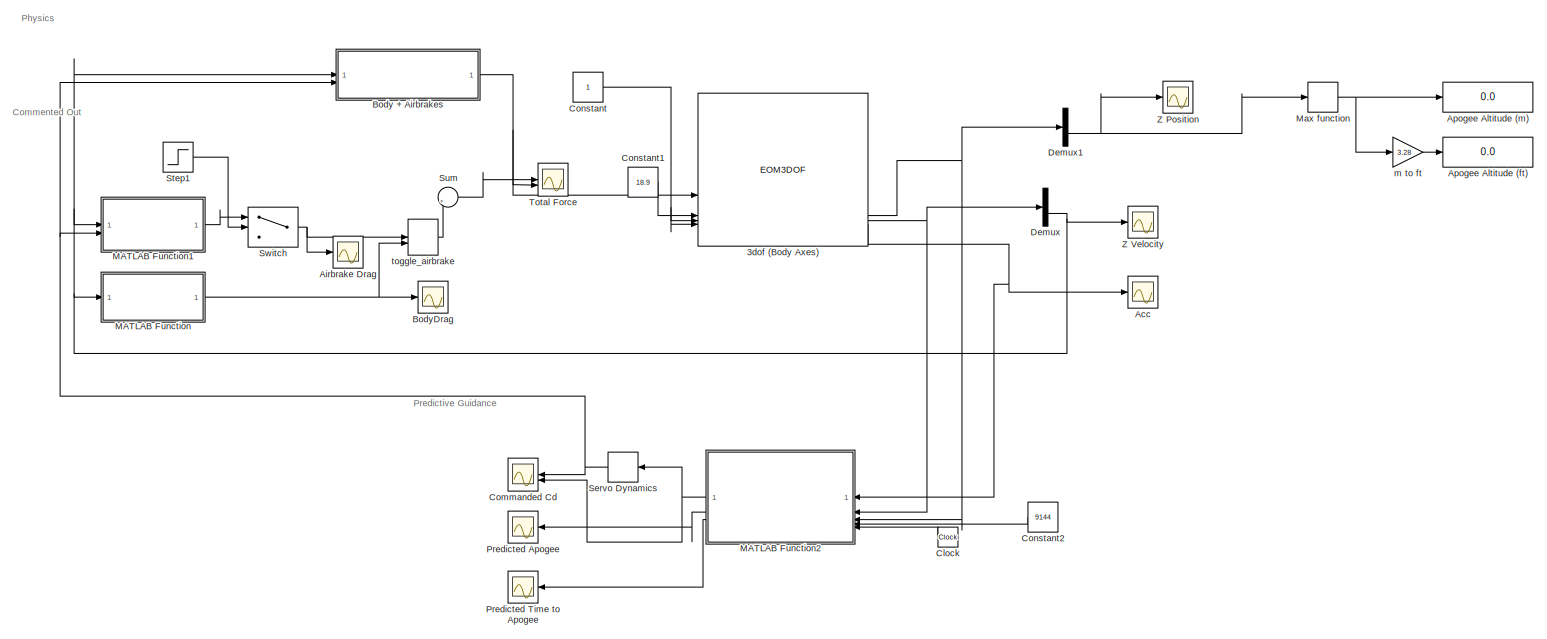
[diagram: root canvas - part 1/1, most of the canvas]
MODEL slx_dd799edcb2a9
KIND model
CONFIG AbsTol = auto
CONFIG EnableMultiTasking = off
CONFIG FixedStep = auto
CONFIG MaxStep = auto
CONFIG MinStep = auto
CONFIG RelTol = 1e-3
CONFIG SampleTimeConstraint = Unconstrained
CONFIG SolverName = VariableStepAuto
CONFIG StartTime = 0.0
CONFIG StopTime = 80
WORKSPACE source: mxarray member
WORKSPACE Cd_body = 0.733
WORKSPACE Sig: Simulink.Signal (value not decoded)
WORKSPACE Var = 0
WORKSPACE mass = 0.964
BLOCK [EOM3DOF] 3dof (Body Axes)
  alpha_ini = 90
  g = -9.81
  mass = mass
  mtype = Custom Variable
  pos_ini = [0 5849.11]
  v_ini = 350
BLOCK [Scope] Acc
  Floating = off
  GraphicalSettings = {"GraphicalSettings":{"LegacySettings":true,"Style":{"Style":{"PlotType":"Auto"}}}}
  NumInputPorts = 1
  WasSavedAsWebScope = on
BLOCK [Scope] Airbrake Drag
  ActiveDisplayYMaximum = 112.77411
  ActiveDisplayYMinimum = -528.36647
  Commented = on
  DataLoggingVariableName = ScopeData3
  Floating = off
  GraphicalSettings = {"GraphicalSettings":{"LegacySettings":true,"Style":{"Style":{"AxesColor":"[0 0 0]","ChannelNames":[""],"ColorOrder":"[1 0.909803921568627 0.392156862745098;0.149019607843137 0.549019607843137 0.866666666666667;0.96078431372549 0.466666666666667 0.16078431372549;0.286274509803922 0.858823529411765 0.250980392156863;0.752941176470588 0.36078431372549 0.984313725490196;0.423529411764706 0.9568627450...<+432ch>  <repeated x3 — deduplicated; at blocks: Airbrake Drag, BodyDrag, Z Velocity>
  MultipleDisplayCache = [{"MaxYLimMag":528.36647,"MaxYLimReal":112.77411,"MinYLimMag":0,"MinYLimReal":-528.36647,"PlotAsMagnitudePhase":false,"ShowGrid":true,"ShowLegend":false,"Title":"%<SignalLabel>","YLabel":""}]
  NumInputPorts = 1
  ScopeFrameLocation = window
  WasSavedAsWebScope = on
  WindowPosition = [440.000000,240.000000,560.000000,420.000000,]
BLOCK [Display] Apogee Altitude (ft)
  Decimation = 1
  Format = long
BLOCK [Display] Apogee Altitude (m)
  Decimation = 1
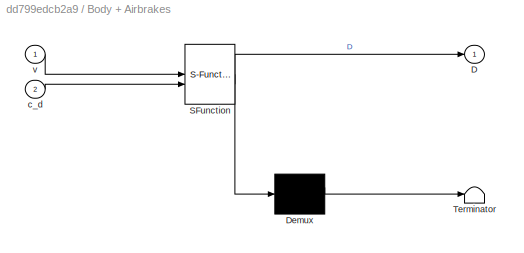
BLOCK [SubSystem] Body + Airbrakes
  ErrorFcn = Stateflow.Translate.translate
  PermitHierarchicalResolution = ExplicitOnly
  SFBlockType = MATLAB Function
  TreatAsAtomicUnit = on
BLOCK [Demux] Body + Airbrakes/ Demux 
  Outputs = 1
BLOCK [S-Function] Body + Airbrakes/ SFunction 
  EnableBusSupport = off
  FunctionName = sf_sfun
  PortCounts = [2 2]
  SFcnIsStateOwnerBlock = off
  SFunctionDeploymentMode = off
  Tag = Stateflow S-Function 4
BLOCK [Terminator] Body + Airbrakes/ Terminator 
BLOCK [Outport] Body + Airbrakes/D
BLOCK [Inport] Body + Airbrakes/c_d
  Port = 2
BLOCK [Inport] Body + Airbrakes/v
BLOCK [Scope] BodyDrag
  ActiveDisplayYMaximum = 34.07992
  ActiveDisplayYMinimum = -168.21044
  Commented = on
  DataLoggingVariableName = ScopeData1
  Floating = off
  MultipleDisplayCache = [{"MaxYLimMag":168.21044,"MaxYLimReal":34.07992,"MinYLimMag":0,"MinYLimReal":-168.21044,"PlotAsMagnitudePhase":false,"ShowGrid":true,"ShowLegend":false,"Title":"%<SignalLabel>","YLabel":""}]
  NumInputPorts = 1
  WasSavedAsWebScope = on
BLOCK [Clock] Clock
BLOCK [Scope] Commanded Cd
  DataLoggingVariableName = ScopeData8
  Floating = off
  GraphicalSettings = {"GraphicalSettings":{"LegacySettings":true,"Style":{"Style":{"PlotType":"Auto"}}}}
  NumInputPorts = 2
  WasSavedAsWebScope = on
BLOCK [Constant] Constant
BLOCK [Constant] Constant1
  Value = 18.9
BLOCK [Constant] Constant2
  Value = 9144
BLOCK [Demux] Demux
  Outputs = 2
BLOCK [Demux] Demux1
  Outputs = 2
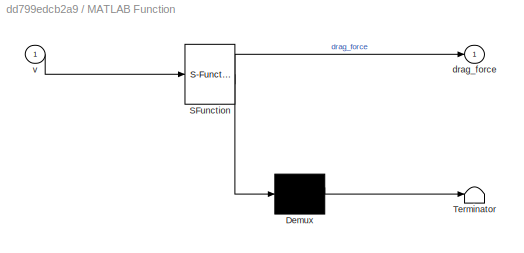
BLOCK [SubSystem] MATLAB Function
  Commented = on
  ErrorFcn = Stateflow.Translate.translate
  PermitHierarchicalResolution = ExplicitOnly
  SFBlockType = MATLAB Function
  TreatAsAtomicUnit = on
BLOCK [Demux] MATLAB Function/ Demux 
  Outputs = 1
BLOCK [S-Function] MATLAB Function/ SFunction 
  EnableBusSupport = off
  FunctionName = sf_sfun
  PortCounts = [1 2]
  SFcnIsStateOwnerBlock = off
  SFunctionDeploymentMode = off
  Tag = Stateflow S-Function 2
BLOCK [Terminator] MATLAB Function/ Terminator 
BLOCK [Outport] MATLAB Function/drag_force
BLOCK [Inport] MATLAB Function/v
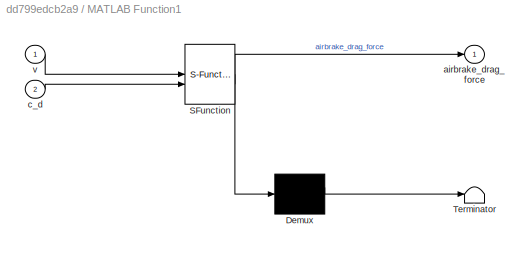
BLOCK [SubSystem] MATLAB Function1
  Commented = on
  ErrorFcn = Stateflow.Translate.translate
  PermitHierarchicalResolution = ExplicitOnly
  SFBlockType = MATLAB Function
  TreatAsAtomicUnit = on
BLOCK [Demux] MATLAB Function1/ Demux 
  Outputs = 1
BLOCK [S-Function] MATLAB Function1/ SFunction 
  EnableBusSupport = off
  FunctionName = sf_sfun
  PortCounts = [2 2]
  SFcnIsStateOwnerBlock = off
  SFunctionDeploymentMode = off
  Tag = Stateflow S-Function 1
BLOCK [Terminator] MATLAB Function1/ Terminator 
BLOCK [Outport] MATLAB Function1/airbrake_drag_force
BLOCK [Inport] MATLAB Function1/c_d
  Port = 2
BLOCK [Inport] MATLAB Function1/v
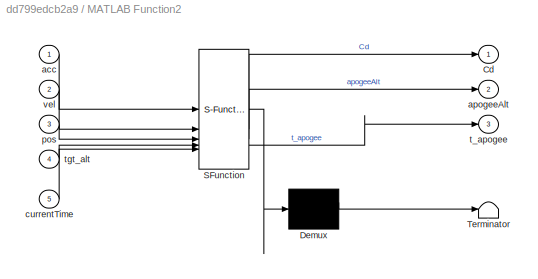
BLOCK [SubSystem] MATLAB Function2
  ErrorFcn = Stateflow.Translate.translate
  NameLocation = top
  PermitHierarchicalResolution = ExplicitOnly
  SFBlockType = MATLAB Function
  TreatAsAtomicUnit = on
BLOCK [Demux] MATLAB Function2/ Demux 
  Outputs = 1
BLOCK [S-Function] MATLAB Function2/ SFunction 
  EnableBusSupport = off
  FunctionName = sf_sfun
  PortCounts = [5 4]
  SFcnIsStateOwnerBlock = off
  SFunctionDeploymentMode = off
  Tag = Stateflow S-Function 3
BLOCK [Terminator] MATLAB Function2/ Terminator 
BLOCK [Outport] MATLAB Function2/Cd
BLOCK [Inport] MATLAB Function2/acc
BLOCK [Outport] MATLAB Function2/apogeeAlt
  Port = 2
BLOCK [Inport] MATLAB Function2/currentTime
  Port = 5
BLOCK [Inport] MATLAB Function2/pos
  Port = 3
BLOCK [Outport] MATLAB Function2/t_apogee
  Port = 3
BLOCK [Inport] MATLAB Function2/tgt_alt
  Port = 4
BLOCK [Inport] MATLAB Function2/vel
  Port = 2
BLOCK [RateLimiter] Max function
  FallingSlewLimit = 0
  RisingSlewLimit = inf
  SampleTimeMode = inherited
BLOCK [Scope] Predicted Apogee
  DataLoggingVariableName = ScopeData7
  Floating = off
  GraphicalSettings = {"GraphicalSettings":{"LegacySettings":true,"Style":{"Style":{"PlotType":"Auto"}}}}
  NumInputPorts = 1
  WasSavedAsWebScope = on
BLOCK [Scope] Predicted Time to Apogee
  DataLoggingVariableName = ScopeData6
  Floating = off
  GraphicalSettings = {"GraphicalSettings":{"LegacySettings":true,"Style":{"Style":{"PlotType":"Auto"}}}}
  NumInputPorts = 1
  ScopeFrameLocation = window
  WasSavedAsWebScope = on
  WindowPosition = [440.000000,240.000000,560.000000,420.000000,]
BLOCK [RateLimiter] Servo Dynamics
  FallingSlewLimit = -1.2
  RisingSlewLimit = 1.2
  SampleTimeMode = inherited
BLOCK [Step] Step1
  Commented = on
  SampleTime = 0
BLOCK [Sum] Sum
  Commented = on
  Inputs = |++
BLOCK [Switch] Switch
  Commented = on
  Criteria = u2 > Threshold
  InputSameDT = off
  SaturateOnIntegerOverflow = off
BLOCK [Scope] Total Force
  ActiveDisplayYMaximum = 5970.6732514977966
  ActiveDisplayYMinimum = -3794.7564502256746
  DataLoggingVariableName = ScopeData4
  Floating = off
  GraphicalSettings = {"AxesScalingProperties":{"AlignXAxis":"Center","AlignYAxis":"Center","AutoScaleXAxisLimits":false,"AxesScaling":"Manual","AxesScalingNumUpdates":10,"ExpandOnly":true,"ScaleAxesLimitsAtStop":false,"XAxisDataRange":100,"YAxisDataRange":80},"DisplayProperties":{"ColorOrder":["auto","auto","auto","auto","auto","auto","auto","auto","auto","auto","auto","auto","auto","auto","auto","auto","auto","auto",...<+1998ch>
  MultipleDisplayCache = [{"MaxYLimMag":4349.9813140128181,"MaxYLimReal":5970.6732514977966,"MinYLimMag":0,"MinYLimReal":-3794.7564502256746,"PlotAsMagnitudePhase":false,"ShowGrid":true,"ShowLegend":false,"Title":"%<SignalLabel>","YLabel":""}]
  NumInputPorts = 2
  ScopeFrameLocation = window
  WasSavedAsWebScope = on
  WindowPosition = [440.000000,240.000000,560.000000,420.000000,]
BLOCK [Scope] Z Position
  ActiveDisplayYMaximum = 1
  ActiveDisplayYMinimum = -1
  DataLoggingVariableName = ScopeData5
  Floating = off
  GraphicalSettings = {"Style":{"BackgroundColor":[0.12941176470588237,0.12941176470588237,0.12941176470588237],"AxesColor":[0.07058823529411765,0.07058823529411765,0.07058823529411765],"LabelsColor":[0.8509803921568627,0.8509803921568627,0.8509803921568627],"PreserveColors":false,"Visible":[true,true],"LineStyle":["-","-"],"LineWidth":[1.5,1.5],"BarWidth":[0.9,0.9],"LineColor":["auto","auto"],"LineFaceAlpha":[1,1],"Li...<+2163ch>
  LayoutDimensionsString = [1,1]
  MultipleDisplayCache = [{"MaxYLimMag":1,"MaxYLimReal":1,"MinYLimMag":0,"MinYLimReal":-1,"PlotAsMagnitudePhase":false,"ShowGrid":true,"ShowLegend":true,"Title":"%<SignalLabel>","YLabel":""}]
  NumInputPorts = 1
  ScopeFrameLocation = window
  ShowLegend = on
  WasSavedAsWebScope = on
  WindowPosition = [138.000000,149.000000,560.000000,420.000000,]
BLOCK [Scope] Z Velocity
  ActiveDisplayYMaximum = 201.30688
  ActiveDisplayYMinimum = -31.73523
  DataLoggingVariableName = ScopeData2
  Floating = off
  MultipleDisplayCache = [{"MaxYLimMag":201.30688,"MaxYLimReal":201.30688,"MinYLimMag":0,"MinYLimReal":-31.73523,"PlotAsMagnitudePhase":false,"ShowGrid":true,"ShowLegend":false,"Title":"%<SignalLabel>","YLabel":""}]
  NumInputPorts = 1
  WasSavedAsWebScope = on
BLOCK [Gain] m to ft
  Gain = 3.28
BLOCK [ManualSwitch] toggle_airbrake
  Commented = on
ANNOTATION (root): Commented Out
ANNOTATION (root): Physics
ANNOTATION (root): Predictive Guidance
NET 3dof (Body Axes):4 -> Demux1:1, MATLAB Function2:3
NET 3dof (Body Axes):5 -> Demux:1, MATLAB Function2:2
NET 3dof (Body Axes):6 -> Acc:1, MATLAB Function2:1
NET Body + Airbrakes:1 -> 3dof (Body Axes):2, Total Force:2
LINE Clock:1 -> MATLAB Function2:5
LINE Constant1:1 -> 3dof (Body Axes):4
LINE Constant2:1 -> MATLAB Function2:4
NET Constant:1 -> 3dof (Body Axes):5, 3dof (Body Axes):6
NET Demux1:2 -> Max function:1, Z Position:1
NET Demux:2 -> Body + Airbrakes:1, MATLAB Function1:1, MATLAB Function:1, Z Velocity:1
LINE MATLAB Function1:1 -> Switch:1
NET MATLAB Function2:1 -> Commanded Cd:2, Servo Dynamics:1
LINE MATLAB Function2:2 -> Predicted Apogee:1
LINE MATLAB Function2:3 -> Predicted Time to Apogee:1
NET MATLAB Function:1 -> BodyDrag:1, toggle_airbrake:2
NET Max function:1 -> Apogee Altitude (m):1, m to ft:1
NET Servo Dynamics:1 -> Body + Airbrakes:2, Commanded Cd:1, MATLAB Function1:2
LINE Step1:1 -> Switch:2
LINE Sum:1 -> Total Force:1
NET Switch:1 -> Airbrake Drag:1, toggle_airbrake:1
LINE m to ft:1 -> Apogee Altitude (ft):1
LINE toggle_airbrake:1 -> Sum:2
note: NET lines group one-source signal fan-out (src -> all destinations, sorted); 1:1 wires keep LINE
CHART MATLAB Function1 states=1 transitions=1
  STATE_LABEL 'eML_blk_kernel()'
  STATE_LABEL 'SCRIPT:\nfunction airbrake_drag_force = fcn(v, c_d) % m/s\n\nrho = 0.59; %kg / m^3\n%A_ref = (3 * 25 * 30)/1000^2; %Shasta \nA_ref = (4 * 50 * 60)/1000^2; % m^2\n\nbody_drag = 0.5*rho*v.^2*c_d*A_ref; % N\n\nairbrake_drag_force = body_drag .* sign(v) * -1;\n'
CHART MATLAB Function states=1 transitions=1
  STATE_LABEL 'eML_blk_kernel()'
  STATE_LABEL 'SCRIPT:\nfunction drag_force = fcn(v)\n\nrho = 0.59; %kg / m^3\n% A_ref = 3505 / 1000^2;% Shasta\n% c_d = 0.733; % Shasta\n\nc_d = 0.632; %IREC\nA_ref = 8107 / 1000^2; %IREC\n\nbody_drag = 0.5*rho*v.^2*c_d*A_ref;\n\ndrag_force = body_drag .* sign(v) * -1;\n'
CHART MATLAB Function2 states=1 transitions=1
  STATE_LABEL 'eML_blk_kernel()'
  STATE_LABEL 'SCRIPT:\nfunction [Cd, apogeeAlt, t_apogee] = apogeePredict(acc, vel, pos, tgt_alt, currentTime)\n    % Inputs:\n    % acc - Acceleration vector: x and z accelerations\n    % vel - Velocity vector: [U, W]. Only care abt W (z-velocity)\n    % pos - Position vector: same as above\n    % tgt_alt - target altitude (m)\n    % currentTime - Current time in secs from launch\n\n    apogeeTgt = tgt_alt;\n    current...<+1327ch>'
CHART Body + Airbrakes states=1 transitions=1
  STATE_LABEL 'eML_blk_kernel()'
  STATE_LABEL 'SCRIPT:\nfunction D = computeFullDrag(v, c_d) % m/s\n\nrho = 0.59; %kg / m^3\n% A_ref = 3505 / 1000^2;% Shasta\n% c_d = 0.733; % Shasta\n\n% c_d = 0.632; %IREC\nA_ref_body = 8107 / 1000^2; %IREC\n\nA_ref_ab = (4 * 50 * 60)/1000^2; % m^2\n\n% body_drag = 0.5*rho*v.^2*c_d*A_ref * sign(v) * -1;\nD = 0.5 * rho * v.^2 * c_d * A_ref_body * sign(v) * -1;\n\n\n'
CHART  states=0 transitions=0
CHART  states=0 transitions=0
CHART  states=0 transitions=0
CHART  states=0 transitions=0
